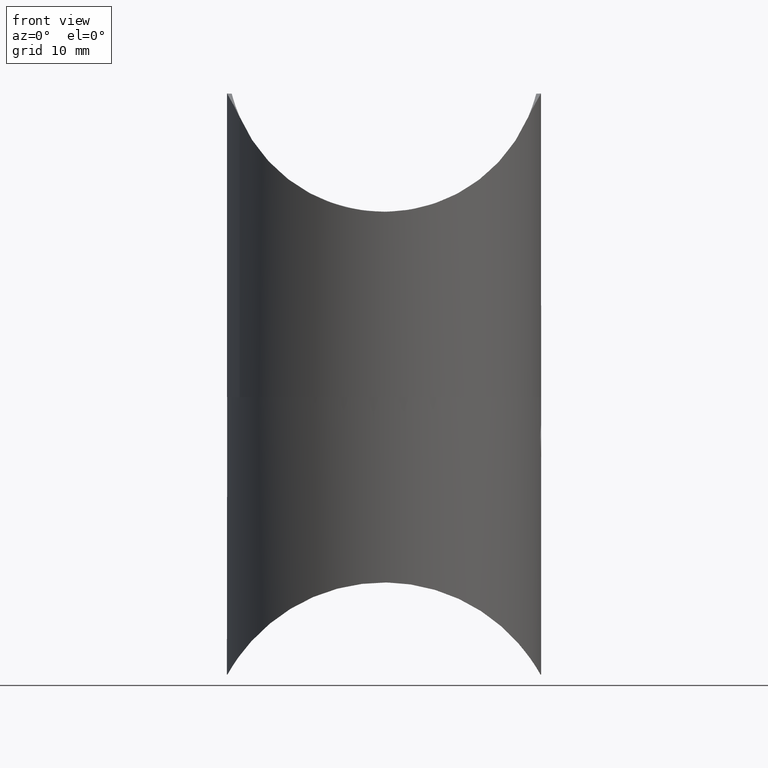
[diagram: clean part render]
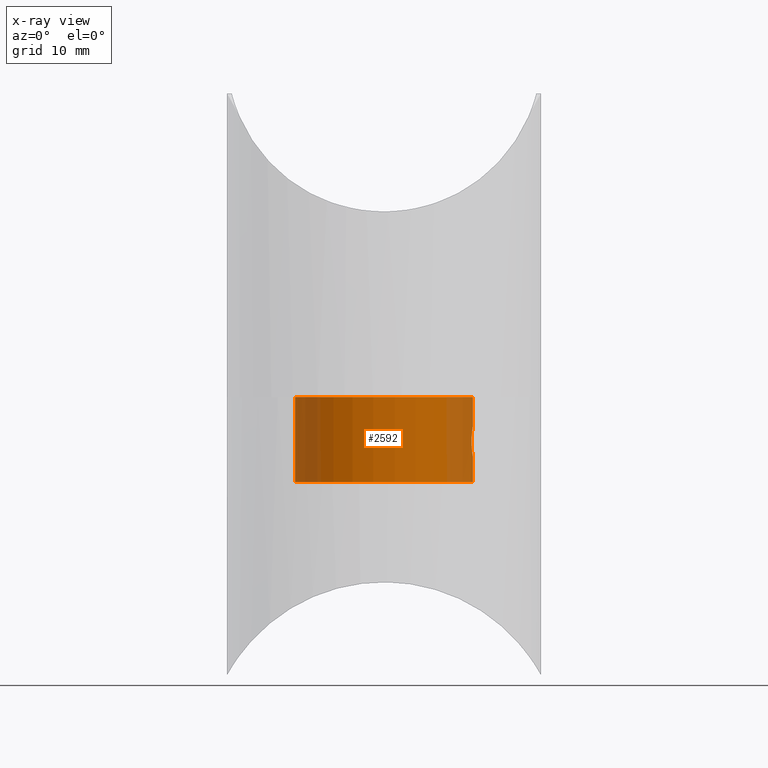
[diagram: x-ray — body ghosted, one internal face saturated and labeled with its STEP entity id]
A machine part, front view, then the same camera in x-ray: the body is ghosted and one INTERNAL B-rep face — a face not visible from any outside direction — is saturated and labeled: STEP entity #2592.
In plain terms, the highlighted cylindrical surface (bore or boss wall) has radius 12 mm, axis along (0, 0, 1).
Its self-contained STEP definition (entity closure, byte-faithful):
#34 = CARTESIAN_POINT ( 'NONE',  ( 11.95583868080448653, -1.059235442716479625, 4.166198353229364493 ) ) ;
#701 = CARTESIAN_POINT ( 'NONE',  ( 12.00000000000000178, 0.1390225640938814178, 3.899999999999994582 ) ) ;
#763 = VERTEX_POINT ( 'NONE', #8114 ) ;
#946 = CARTESIAN_POINT ( 'NONE',  ( 11.93172128118156472, -1.293009970936234376, 4.322867531882416792 ) ) ;
#957 = VERTEX_POINT ( 'NONE', #5740 ) ;
#1058 = CARTESIAN_POINT ( 'NONE',  ( 11.98136072408851582, -0.6804482128722011414, 4.008595400150825938 ) ) ;
#1109 = CARTESIAN_POINT ( 'NONE',  ( 11.89558327999342424, -1.582580269031047759, 4.612880063868908920 ) ) ;
#1119 = CARTESIAN_POINT ( 'NONE',  ( -12.00000000000000178, 0.000000000000000000, 11.49999999999994849 ) ) ;
#1159 = CARTESIAN_POINT ( 'NONE',  ( 11.98828488230610034, 0.5470151797888789247, 8.032161743065046267 ) ) ;
#1473 = DIRECTION ( 'NONE',  ( -1.000000000000000000, 0.000000000000000000, 0.000000000000000000 ) ) ;
#1935 = AXIS2_PLACEMENT_3D ( 'NONE', #5127, #7539, #7445 ) ;
#1972 = ORIENTED_EDGE ( 'NONE', *, *, #2392, .F. ) ;
#2018 = FACE_BOUND ( 'NONE', #10634, .T. ) ;
#2036 = CARTESIAN_POINT ( 'NONE',  ( 11.96460655519219607, -0.9296471495185134604, 7.887982229435081649 ) ) ;
#2080 = CARTESIAN_POINT ( 'NONE',  ( 11.99755274049298670, 0.2773594515023565243, 8.086139662524763239 ) ) ;
#2081 = EDGE_CURVE ( 'NONE', #957, #957, #7463, .T. ) ;
#2137 = CARTESIAN_POINT ( 'NONE',  ( 12.00000000000000711, -0.1390225640938823060, 3.899999999999995026 ) ) ;
#2188 = CARTESIAN_POINT ( 'NONE',  ( 11.98826971918961881, -0.5475403247006509488, 3.967925917865797736 ) ) ;
#2241 = CARTESIAN_POINT ( 'NONE',  ( 11.82504449829075632, 2.044408044357564513, 5.447579286169216495 ) ) ;
#2392 = EDGE_CURVE ( 'NONE', #13014, #13014, #8173, .T. ) ;
#2405 = FACE_OUTER_BOUND ( 'NONE', #12679, .T. ) ;
#2592 = ADVANCED_FACE ( 'NONE', ( #2018, #2405, #5118 ), #6516, .F. ) ;
#2988 = CARTESIAN_POINT ( 'NONE',  ( 11.98839789607710493, 0.5444206455312670112, 3.967174691575608758 ) ) ;
#3302 = ORIENTED_EDGE ( 'NONE', *, *, #2081, .T. ) ;
#3347 = CARTESIAN_POINT ( 'NONE',  ( 11.99758543647637943, -0.2763240157166885758, 3.913670562736301317 ) ) ;
#3396 = CARTESIAN_POINT ( 'NONE',  ( 11.81726473798053334, 2.086383612213993821, 6.275473674643913036 ) ) ;
#3903 = EDGE_LOOP ( 'NONE', ( #3302 ) ) ;
#4155 = CARTESIAN_POINT ( 'NONE',  ( 11.88363963771688958, 1.678406588973372582, 4.708609844555004642 ) ) ;
#4205 = CARTESIAN_POINT ( 'NONE',  ( 11.96442116355708052, 0.9321221279122053893, 4.113181683491654361 ) ) ;
#4270 = CARTESIAN_POINT ( 'NONE',  ( 0.000000000000000000, 0.000000000000000000, 11.49999999999994849 ) ) ;
#4362 = CARTESIAN_POINT ( 'NONE',  ( 11.98151228912667499, 0.6779080366305382244, 7.992320321767021341 ) ) ;
#4469 = CARTESIAN_POINT ( 'NONE',  ( 11.89586917460358251, -1.580451568311320276, 7.389571388286482190 ) ) ;
#4518 = CARTESIAN_POINT ( 'NONE',  ( 11.81480711405181161, 2.100079251906457056, 6.136027825990305828 ) ) ;
#4572 = CARTESIAN_POINT ( 'NONE',  ( 11.88360518176614455, -1.669086411898564881, 7.281751924229728168 ) ) ;
#5118 = FACE_OUTER_BOUND ( 'NONE', #3903, .T. ) ;
#5127 = CARTESIAN_POINT ( 'NONE',  ( 0.000000000000000000, 0.000000000000000000, 11.49999999999994849 ) ) ;
#5425 = CARTESIAN_POINT ( 'NONE',  ( 11.98151183172213052, 0.6779378043882476890, 4.007680910537619212 ) ) ;
#5468 = CARTESIAN_POINT ( 'NONE',  ( 11.91979888924957898, 1.388480957413881445, 4.418606647993157388 ) ) ;
#5518 = CARTESIAN_POINT ( 'NONE',  ( 11.83346516143668836, 1.992976193566194709, 6.676036297475425485 ) ) ;
#5626 = CARTESIAN_POINT ( 'NONE',  ( 11.81722603926612436, -2.086600151662308722, 5.726333217600912739 ) ) ;
#5632 = B_SPLINE_CURVE_WITH_KNOTS ( 'NONE', 3,
 ( #11092, #701, #12356, #2988, #5425, #4205, #13460, #11046, #5468, #4155, #13513, #2241, #10304, #4518, #3396, #13779, #5518, #12408, #5731, #11231, #7838, #6785, #14872, #6890, #11449, #4362, #1159, #2080, #11396, #11290, #12562, #2036, #13565, #13618, #6677, #4469, #4572, #12512, #13670, #12612, #7990, #14713, #6726, #14821, #5626, #7938, #10143, #9087, #6836, #10250, #1109, #946, #34, #1058, #2188, #3347, #2137, #9137 ),
 .UNSPECIFIED., .T., .F.,
 ( 4, 2, 2, 2, 2, 2, 2, 2, 2, 2, 2, 2, 2, 2, 2, 2, 2, 2, 2, 2, 2, 2, 2, 2, 2, 2, 2, 2, 4 ),
 ( 0.000000000000000000, 0.0004110877741431817178, 0.0008221755482863632187, 0.001233263322429544720, 0.001644351096572726221, 0.002466526644859088572, 0.003288702193145451574, 0.003699789967288633942, 0.004110877741431815877, 0.004521965515574998679, 0.004933053289718182348, 0.005344141063861365150, 0.005755228838004547084, 0.006166316612147728152, 0.006577404386290908352, 0.007399579934577270486, 0.007810667708720452421, 0.008221755482863633488, 0.008632843257006814555, 0.009043931031149997357, 0.009455018805293178424, 0.009866106579436361226, 0.01027719435357954229, 0.01068828212772272510, 0.01109936990186590616, 0.01151045767600908723, 0.01233263322429544936, 0.01274372099843863217, 0.01315480877258181150 ),
 .UNSPECIFIED. ) ;
#5731 = CARTESIAN_POINT ( 'NONE',  ( 11.86112961740384542, 1.821947627606114173, 7.053175765665415042 ) ) ;
#5740 = CARTESIAN_POINT ( 'NONE',  ( -12.00000000000000178, 0.000000000000000000, 0.000000000000000000 ) ) ;
#6516 = CYLINDRICAL_SURFACE ( 'NONE', #12253, 12.00000000000000178 ) ;
#6677 = CARTESIAN_POINT ( 'NONE',  ( 11.92000811184873399, -1.386700109079761489, 7.582971449647875950 ) ) ;
#6726 = CARTESIAN_POINT ( 'NONE',  ( 11.81484057874540206, -2.099890975967358742, 6.140380114349049734 ) ) ;
#6785 = CARTESIAN_POINT ( 'NONE',  ( 11.91990506011928197, 1.387644347599305883, 7.582259098887390358 ) ) ;
#6836 = CARTESIAN_POINT ( 'NONE',  ( 11.86092440456027397, -1.823295257947106673, 4.949067841735953266 ) ) ;
#6890 = CARTESIAN_POINT ( 'NONE',  ( 11.95409979737489792, 1.054760392010274161, 7.821032775836709305 ) ) ;
#7445 = DIRECTION ( 'NONE',  ( -1.000000000000000000, 0.000000000000000000, 0.000000000000000000 ) ) ;
#7463 = CIRCLE ( 'NONE', #13507, 12.00000000000000178 ) ;
#7539 = DIRECTION ( 'NONE',  ( 0.000000000000000000, 0.000000000000000000, -1.000000000000000000 ) ) ;
#7838 = CARTESIAN_POINT ( 'NONE',  ( 11.89553171067913162, 1.583040996913483767, 7.386752282683329618 ) ) ;
#7938 = CARTESIAN_POINT ( 'NONE',  ( 11.82651144408109545, -2.033312204027048153, 5.457381181988207430 ) ) ;
#7990 = CARTESIAN_POINT ( 'NONE',  ( 11.82667835274314072, -2.032344071998362534, 6.546192681212231967 ) ) ;
#8114 = CARTESIAN_POINT ( 'NONE',  ( 12.00000000000000178, -7.347880794884120722E-16, 3.899999999999994582 ) ) ;
#8173 = CIRCLE ( 'NONE', #1935, 12.00000000000000178 ) ;
#9087 = CARTESIAN_POINT ( 'NONE',  ( 11.85071665137476593, -1.887684512886479427, 5.069660372659843262 ) ) ;
#9137 = CARTESIAN_POINT ( 'NONE',  ( 12.00000000000000355, -6.776263578034402713E-16, 3.899999999999994582 ) ) ;
#9475 = CARTESIAN_POINT ( 'NONE',  ( 0.000000000000000000, 0.000000000000000000, 0.000000000000000000 ) ) ;
#10143 = CARTESIAN_POINT ( 'NONE',  ( 11.83348956523700757, -1.992827810120421317, 5.323596302788397239 ) ) ;
#10250 = CARTESIAN_POINT ( 'NONE',  ( 11.88335354840744174, -1.670880537889620543, 4.720538305759944819 ) ) ;
#10304 = CARTESIAN_POINT ( 'NONE',  ( 11.81484956178276313, 2.099840436459505355, 5.724290231699662890 ) ) ;
#10634 = EDGE_LOOP ( 'NONE', ( #10688 ) ) ;
#10688 = ORIENTED_EDGE ( 'NONE', *, *, #14524, .T. ) ;
#10727 = DIRECTION ( 'NONE',  ( 0.000000000000000000, 0.000000000000000000, -1.000000000000000000 ) ) ;
#11046 = CARTESIAN_POINT ( 'NONE',  ( 11.93201236731082560, 1.280706470412639408, 4.330089670438439953 ) ) ;
#11092 = CARTESIAN_POINT ( 'NONE',  ( 12.00000000000000355, -6.776263578034402713E-16, 3.899999999999994582 ) ) ;
#11231 = CARTESIAN_POINT ( 'NONE',  ( 11.88346114303485024, 1.670101859341210249, 7.280403112519451270 ) ) ;
#11290 = CARTESIAN_POINT ( 'NONE',  ( 12.00001891821712974, -0.2735354104619611704, 8.100108104106009677 ) ) ;
#11396 = CARTESIAN_POINT ( 'NONE',  ( 11.99999049797130013, 0.1380107357596328799, 8.099945702689016258 ) ) ;
#11449 = CARTESIAN_POINT ( 'NONE',  ( 11.96444018425252764, 0.9318621776127391509, 7.886937320789685124 ) ) ;
#12253 = AXIS2_PLACEMENT_3D ( 'NONE', #4270, #12272, #14624 ) ;
#12272 = DIRECTION ( 'NONE',  ( 0.000000000000000000, 0.000000000000000000, -1.000000000000000000 ) ) ;
#12356 = CARTESIAN_POINT ( 'NONE',  ( 11.99758661110946534, 0.2756691184617631185, 3.913668504053604558 ) ) ;
#12408 = CARTESIAN_POINT ( 'NONE',  ( 11.85073445340301390, 1.887576422289823030, 6.930609710695853742 ) ) ;
#12512 = CARTESIAN_POINT ( 'NONE',  ( 11.86122223683398680, -1.821353511792389135, 7.054233764746969726 ) ) ;
#12562 = CARTESIAN_POINT ( 'NONE',  ( 11.99004954306560755, -0.5503883424061319918, 8.044983021353919739 ) ) ;
#12612 = CARTESIAN_POINT ( 'NONE',  ( 11.83365049448734396, -1.991881971882787372, 6.679269136001749985 ) ) ;
#12679 = EDGE_LOOP ( 'NONE', ( #1972 ) ) ;
#13014 = VERTEX_POINT ( 'NONE', #1119 ) ;
#13460 = CARTESIAN_POINT ( 'NONE',  ( 11.95429157110416085, 1.052635373737397684, 4.177702455116088842 ) ) ;
#13507 = AXIS2_PLACEMENT_3D ( 'NONE', #9475, #10727, #1473 ) ;
#13513 = CARTESIAN_POINT ( 'NONE',  ( 11.85938010180748670, 1.834771168086872128, 4.942461510080890186 ) ) ;
#13565 = CARTESIAN_POINT ( 'NONE',  ( 11.95433794049144005, -1.052157554987843691, 7.822613799004674462 ) ) ;
#13618 = CARTESIAN_POINT ( 'NONE',  ( 11.93197218499960144, -1.281120951505777983, 7.669636394085003417 ) ) ;
#13670 = CARTESIAN_POINT ( 'NONE',  ( 11.85098633725269046, -1.886001232725554866, 6.933809241330314954 ) ) ;
#13779 = CARTESIAN_POINT ( 'NONE',  ( 11.82661786571889451, 2.032695826505255710, 6.545004586811008274 ) ) ;
#14524 = EDGE_CURVE ( 'NONE', #763, #763, #5632, .T. ) ;
#14624 = DIRECTION ( 'NONE',  ( -1.000000000000000000, 0.000000000000000000, 0.000000000000000000 ) ) ;
#14713 = CARTESIAN_POINT ( 'NONE',  ( 11.81732158297307400, -2.086061813760280437, 6.277659829950022363 ) ) ;
#14821 = CARTESIAN_POINT ( 'NONE',  ( 11.81480205006285367, -2.100107742461963412, 5.862900920845073749 ) ) ;
#14872 = CARTESIAN_POINT ( 'NONE',  ( 11.93187980565469353, 1.281899275903434665, 7.668955991529873728 ) ) ;